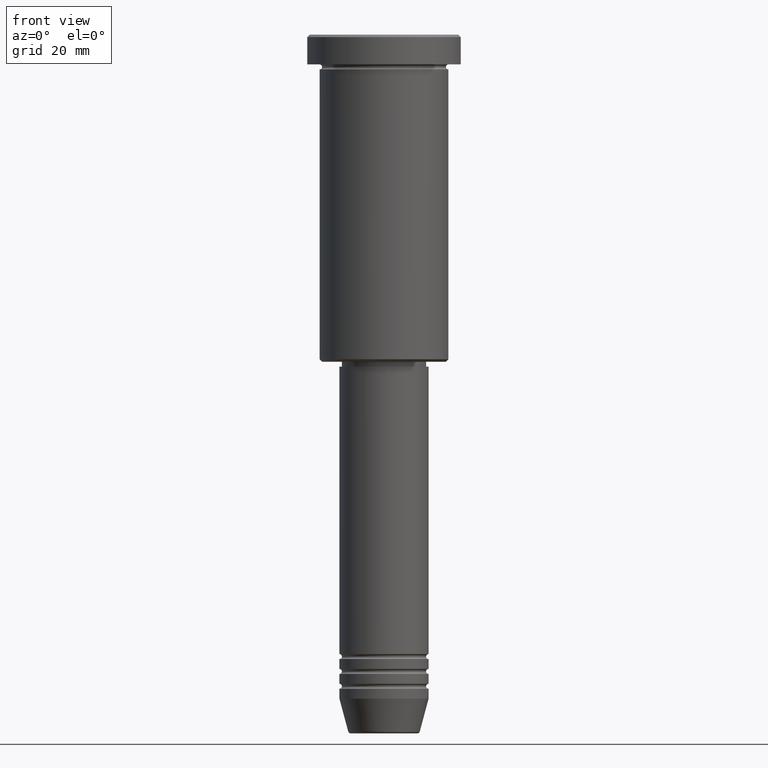
[diagram: clean part render]
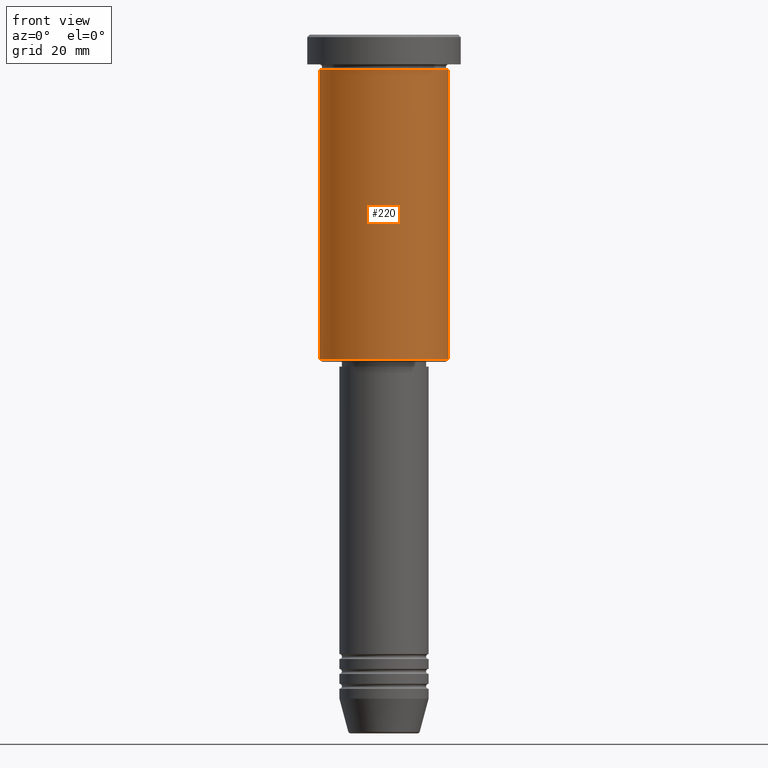
[diagram: same view with one face highlighted and labeled with its STEP entity id]
A machine part, front view. The second image highlights one B-rep face of the part: STEP entity #220.
In plain terms, the highlighted cylindrical surface (partial cylindrical patch) has radius 13 mm, axis along (-0, -0, 1).
Its self-contained STEP definition (entity closure, byte-faithful):
#11 = DIRECTION ( 'NONE',  ( -1.000000000000000000, 0.000000000000000000, 0.000000000000000000 ) ) ;
#25 = VERTEX_POINT ( 'NONE', #171 ) ;
#41 = ORIENTED_EDGE ( 'NONE', *, *, #740, .F. ) ;
#69 = AXIS2_PLACEMENT_3D ( 'NONE', #478, #1034, #11 ) ;
#72 = CARTESIAN_POINT ( 'NONE',  ( 0.000000000000000000, 0.000000000000000000, -6.999999999999995559 ) ) ;
#79 = EDGE_CURVE ( 'NONE', #618, #744, #590, .T. ) ;
#88 = CARTESIAN_POINT ( 'NONE',  ( 13.00000000000000000, 0.000000000000000000, 0.000000000000000000 ) ) ;
#97 = CYLINDRICAL_SURFACE ( 'NONE', #785, 13.00000000000000000 ) ;
#129 = CARTESIAN_POINT ( 'NONE',  ( -13.00000000000000000, 1.592040838891559095E-15, -65.49999999999997158 ) ) ;
#171 = CARTESIAN_POINT ( 'NONE',  ( 13.00000000000000000, 0.000000000000000000, -6.999999999999995559 ) ) ;
#190 = DIRECTION ( 'NONE',  ( 1.000000000000000000, 0.000000000000000000, 0.000000000000000000 ) ) ;
#220 = ADVANCED_FACE ( 'NONE', ( #564 ), #97, .T. ) ;
#301 = LINE ( 'NONE', #323, #1095 ) ;
#318 = ORIENTED_EDGE ( 'NONE', *, *, #79, .T. ) ;
#319 = ORIENTED_EDGE ( 'NONE', *, *, #428, .T. ) ;
#323 = CARTESIAN_POINT ( 'NONE',  ( -13.00000000000000000, 1.592040838891559095E-15, 0.000000000000000000 ) ) ;
#332 = CIRCLE ( 'NONE', #550, 13.00000000000000000 ) ;
#397 = CARTESIAN_POINT ( 'NONE',  ( 13.00000000000000000, 0.000000000000000000, -65.49999999999997158 ) ) ;
#426 = VECTOR ( 'NONE', #809, 1000.000000000000000 ) ;
#428 = EDGE_CURVE ( 'NONE', #744, #25, #1105, .T. ) ;
#478 = CARTESIAN_POINT ( 'NONE',  ( 0.000000000000000000, 0.000000000000000000, -65.49999999999997158 ) ) ;
#494 = DIRECTION ( 'NONE',  ( -0.000000000000000000, -0.000000000000000000, 1.000000000000000000 ) ) ;
#550 = AXIS2_PLACEMENT_3D ( 'NONE', #72, #552, #190 ) ;
#552 = DIRECTION ( 'NONE',  ( -0.000000000000000000, -0.000000000000000000, 1.000000000000000000 ) ) ;
#562 = DIRECTION ( 'NONE',  ( 1.000000000000000000, 0.000000000000000000, 0.000000000000000000 ) ) ;
#564 = FACE_OUTER_BOUND ( 'NONE', #1078, .T. ) ;
#590 = CIRCLE ( 'NONE', #69, 13.00000000000000000 ) ;
#603 = CARTESIAN_POINT ( 'NONE',  ( -13.00000000000000000, 1.592040838891559095E-15, -6.999999999999995559 ) ) ;
#618 = VERTEX_POINT ( 'NONE', #129 ) ;
#740 = EDGE_CURVE ( 'NONE', #618, #1025, #301, .T. ) ;
#744 = VERTEX_POINT ( 'NONE', #397 ) ;
#785 = AXIS2_PLACEMENT_3D ( 'NONE', #825, #1155, #562 ) ;
#809 = DIRECTION ( 'NONE',  ( -0.000000000000000000, -0.000000000000000000, 1.000000000000000000 ) ) ;
#825 = CARTESIAN_POINT ( 'NONE',  ( 0.000000000000000000, 0.000000000000000000, 0.000000000000000000 ) ) ;
#827 = EDGE_CURVE ( 'NONE', #1025, #25, #332, .T. ) ;
#969 = ORIENTED_EDGE ( 'NONE', *, *, #827, .F. ) ;
#1025 = VERTEX_POINT ( 'NONE', #603 ) ;
#1034 = DIRECTION ( 'NONE',  ( -0.000000000000000000, -0.000000000000000000, 1.000000000000000000 ) ) ;
#1078 = EDGE_LOOP ( 'NONE', ( #41, #318, #319, #969 ) ) ;
#1095 = VECTOR ( 'NONE', #494, 1000.000000000000000 ) ;
#1105 = LINE ( 'NONE', #88, #426 ) ;
#1155 = DIRECTION ( 'NONE',  ( -0.000000000000000000, -0.000000000000000000, 1.000000000000000000 ) ) ;